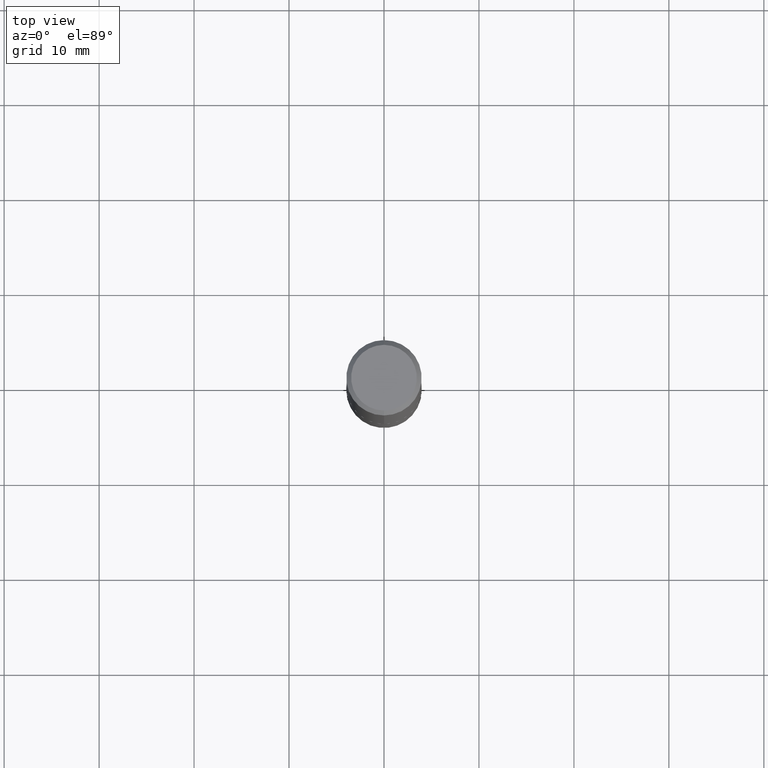
[diagram: clean part render]
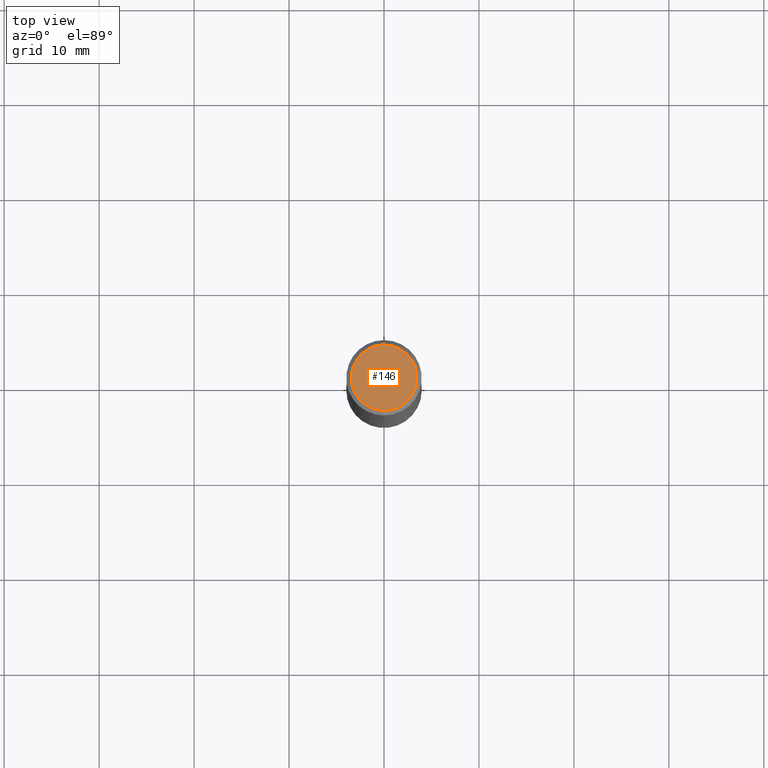
[diagram: same view with one face highlighted and labeled with its STEP entity id]
A machine part, top view. The second image highlights one B-rep face of the part: STEP entity #146.
In plain terms, the highlighted planar face has unit normal (0, -0, -1).
Its self-contained STEP definition (entity closure, byte-faithful):
#8 = VERTEX_POINT ( 'NONE', #60 ) ;
#46 = CIRCLE ( 'NONE', #111, 0.1362500000000001210 ) ;
#52 = DIRECTION ( 'NONE',  ( -2.445176063107630933E-29, 3.491900563592034843E-15, 1.000000000000000000 ) ) ;
#54 = CARTESIAN_POINT ( 'NONE',  ( 2.190428889620163364E-45, -3.128101894001013777E-31, -8.958164292007245599E-17 ) ) ;
#55 = DIRECTION ( 'NONE',  ( -6.982962677686265922E-15, -1.000000000000000000, 3.491900563592034843E-15 ) ) ;
#60 = CARTESIAN_POINT ( 'NONE',  ( -1.003347832174086672E-15, -0.1362500000000001210, 3.861898088693426789E-16 ) ) ;
#75 = AXIS2_PLACEMENT_3D ( 'NONE', #54, #274, #243 ) ;
#81 = EDGE_CURVE ( 'NONE', #375, #8, #226, .T. ) ;
#111 = AXIS2_PLACEMENT_3D ( 'NONE', #346, #52, #55 ) ;
#146 = ADVANCED_FACE ( 'NONE', ( #357 ), #393, .F. ) ;
#155 = DIRECTION ( 'NONE',  ( 6.982962677686265922E-15, 1.000000000000000000, -3.491900563592034843E-15 ) ) ;
#199 = ORIENTED_EDGE ( 'NONE', *, *, #81, .T. ) ;
#226 = CIRCLE ( 'NONE', #75, 0.1362500000000001210 ) ;
#243 = DIRECTION ( 'NONE',  ( -6.982962677686265922E-15, -1.000000000000000000, 3.491900563592034843E-15 ) ) ;
#266 = CARTESIAN_POINT ( 'NONE',  ( 9.514286648347545493E-16, 0.1362500000000001210, -5.205622732494513937E-16 ) ) ;
#274 = DIRECTION ( 'NONE',  ( -2.445176063107630933E-29, 3.491900563592034843E-15, 1.000000000000000000 ) ) ;
#278 = AXIS2_PLACEMENT_3D ( 'NONE', #266, #397, #155 ) ;
#334 = EDGE_LOOP ( 'NONE', ( #199, #391 ) ) ;
#346 = CARTESIAN_POINT ( 'NONE',  ( 2.190428889620163364E-45, -3.128101894001013777E-31, -8.958164292007245599E-17 ) ) ;
#357 = FACE_OUTER_BOUND ( 'NONE', #334, .T. ) ;
#370 = EDGE_CURVE ( 'NONE', #8, #375, #46, .T. ) ;
#375 = VERTEX_POINT ( 'NONE', #414 ) ;
#391 = ORIENTED_EDGE ( 'NONE', *, *, #370, .T. ) ;
#393 = PLANE ( 'NONE',  #278 ) ;
#397 = DIRECTION ( 'NONE',  ( 2.445176063107630653E-29, -3.491900563592034843E-15, -1.000000000000000000 ) ) ;
#414 = CARTESIAN_POINT ( 'NONE',  ( 1.021258291611617059E-15, 0.1362500000000001210, -5.653530947094876156E-16 ) ) ;